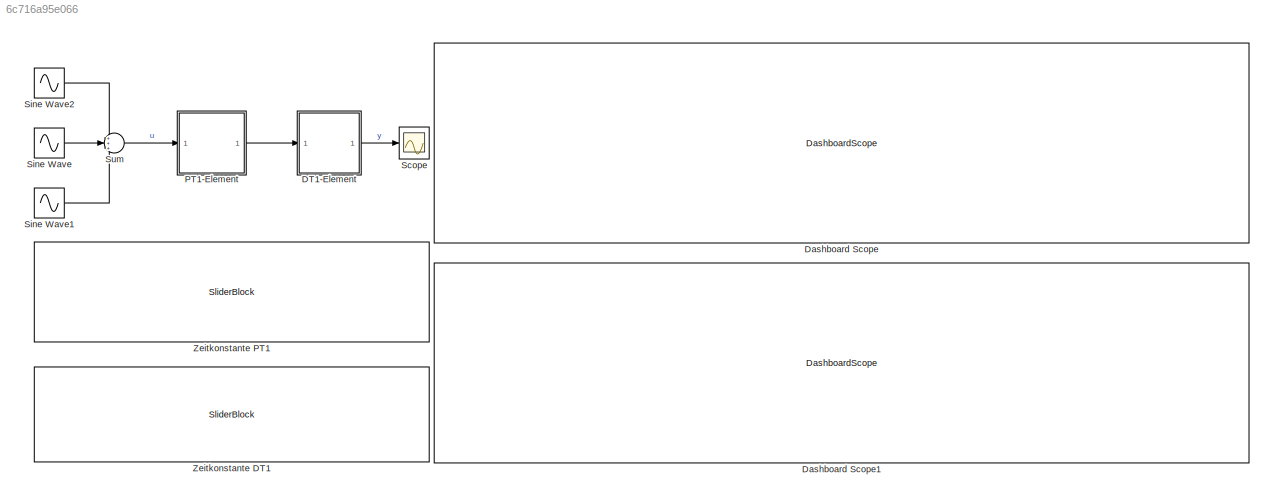
MODEL slx_6c716a95e066
KIND model
CONFIG AbsTol = auto
CONFIG EnableMultiTasking = off
CONFIG FixedStep = auto
CONFIG MaxStep = auto
CONFIG MinStep = auto
CONFIG RelTol = 1e-3
CONFIG SampleTimeConstraint = Unconstrained
CONFIG SolverName = VariableStepAuto
CONFIG StartTime = 0.0
CONFIG StopTime = 10
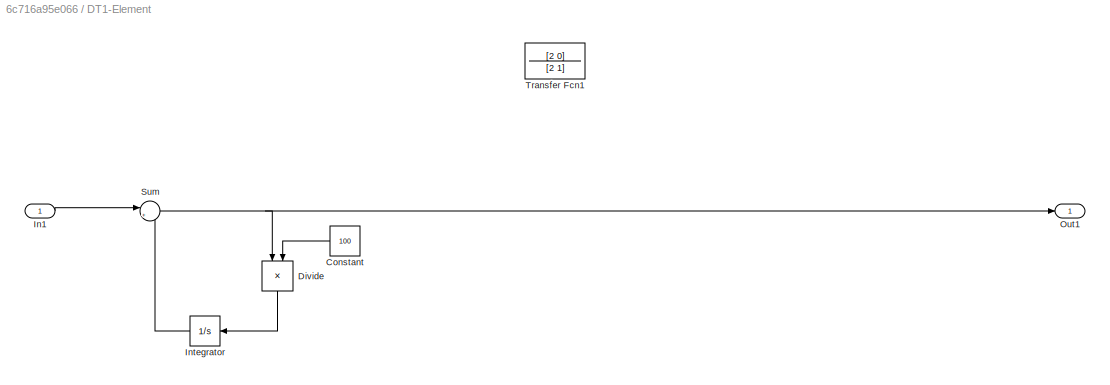
BLOCK [SubSystem] DT1-Element
  Ports = [1, 1]
  RequestExecContextInheritance = off
BLOCK [Constant] DT1-Element/Constant
  Value = 100
BLOCK [Product] DT1-Element/Divide
  Inputs = */
  NameLocation = right
  Ports = [2, 1]
BLOCK [Inport] DT1-Element/In1
BLOCK [Integrator] DT1-Element/Integrator
  Ports = [1, 1]
BLOCK [Outport] DT1-Element/Out1
BLOCK [Sum] DT1-Element/Sum
  Inputs = |+-
  Ports = [2, 1]
BLOCK [TransferFcn] DT1-Element/Transfer Fcn1
  Commented = through
  Denominator = [2 1]
  Numerator = [2 0]
BLOCK [DashboardScope] Dashboard Scope
BLOCK [DashboardScope] Dashboard Scope1
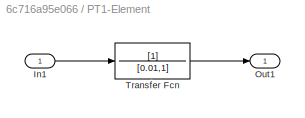
BLOCK [SubSystem] PT1-Element
  Ports = [1, 1]
  RequestExecContextInheritance = off
BLOCK [Inport] PT1-Element/In1
BLOCK [Outport] PT1-Element/Out1
BLOCK [TransferFcn] PT1-Element/Transfer Fcn
  Denominator = [0.01,1]
BLOCK [Scope] Scope
  Floating = off
  NumInputPorts = 1
  Ports = [1]
  ScopeSpecificationString = Simulink.scopes.TimeScopeBlockCfg('CurrentConfiguration', extmgr.ConfigurationSet(extmgr.Configuration('Core','General UI',true),extmgr.Configuration('Core','Source UI',true),extmgr.Configuration('Sources','WiredSimulink',true),extmgr.Configuration('Visuals','Time Domain',true),extmgr.Configuration('Tools','Plot Navigation',true),extmgr.Configuration('Tools','Measurements',true)),'Version','2022a'...<+1ch>
BLOCK [Sin] Sine Wave
  Amplitude = 2
  Frequency = 0.01
  Phase = 1
  Ports = [0, 1]
  SampleTime = 0
BLOCK [Sin] Sine Wave1
  Amplitude = 3
  Phase = pi/2
  Ports = [0, 1]
  SampleTime = 0
BLOCK [Sin] Sine Wave2
  Frequency = 100
  Ports = [0, 1]
  SampleTime = 0
BLOCK [Sum] Sum
  Inputs = +++
  Ports = [3, 1]
BLOCK [SliderBlock] Zeitkonstante DT1
  LabelPosition = Hide
  ScaleMin = 0.01
  ScaleType = Log
BLOCK [SliderBlock] Zeitkonstante PT1
  LabelPosition = Hide
  ScaleMin = 0.01
  ScaleType = Log
LINE DT1-Element/Constant:1 -> DT1-Element/Divide:2
LINE DT1-Element/Divide:1 -> DT1-Element/Integrator:1
LINE DT1-Element/In1:1 -> DT1-Element/Sum:1
LINE DT1-Element/Integrator:1 -> DT1-Element/Sum:2
NET DT1-Element/Sum:1 -> DT1-Element/Divide:1, DT1-Element/Out1:1
LINE DT1-Element:1 -> Scope:1
LINE PT1-Element/In1:1 -> PT1-Element/Transfer Fcn:1
LINE PT1-Element/Transfer Fcn:1 -> PT1-Element/Out1:1
LINE PT1-Element:1 -> DT1-Element:1
LINE Sine Wave1:1 -> Sum:3
LINE Sine Wave2:1 -> Sum:1
LINE Sine Wave:1 -> Sum:2
LINE Sum:1 -> PT1-Element:1
note: NET lines group one-source signal fan-out (src -> all destinations, sorted); 1:1 wires keep LINE
